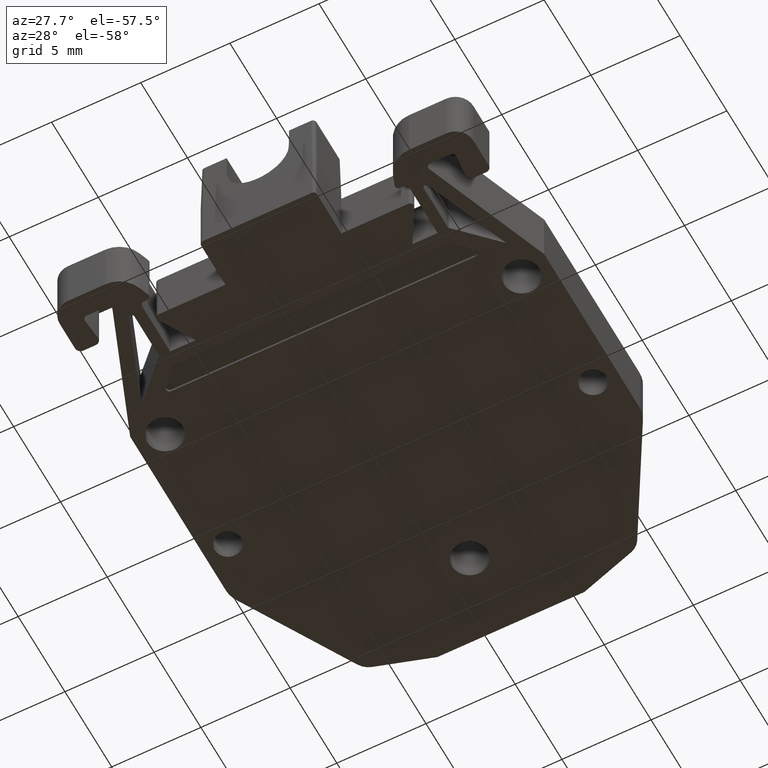
[diagram: clean part render]
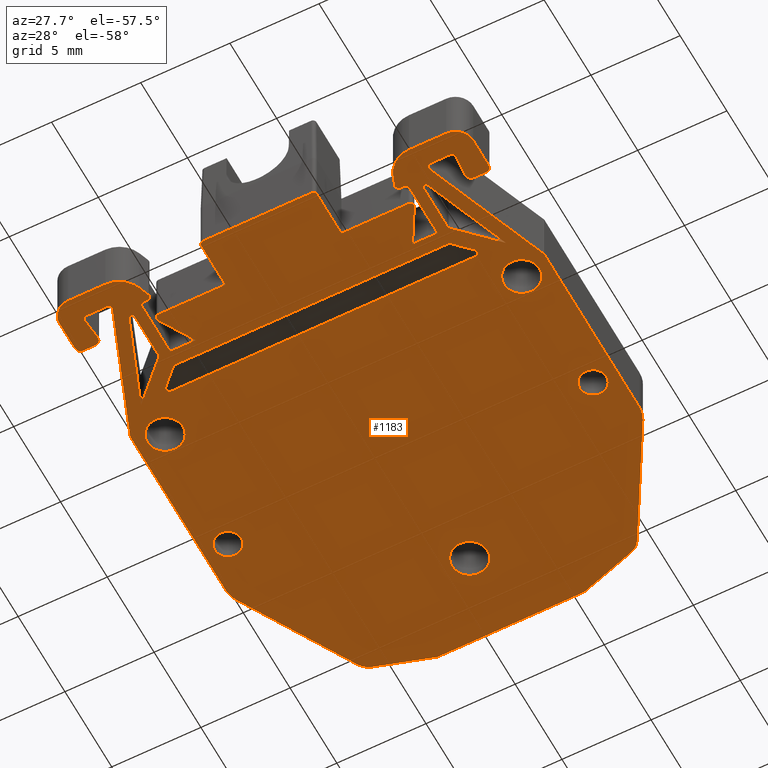
[diagram: same view with one face highlighted and labeled with its STEP entity id]
A machine part, auxiliary view. The second image highlights one B-rep face of the part: STEP entity #1183.
In plain terms, the highlighted planar face has unit normal (0, 0, -1).
Its self-contained STEP definition (entity closure, byte-faithful):
#2 = CARTESIAN_POINT ( 'NONE',  ( 241.5252887473434700, 476.3741209569420200, 8.439999999999999500 ) ) ;
#3 = DIRECTION ( 'NONE',  ( 1.000000000000000000, 0.0000000000000000000, 0.0000000000000000000 ) ) ;
#5 = CARTESIAN_POINT ( 'NONE',  ( 239.8239954452629900, 466.8967608090050000, 8.439999999999999500 ) ) ;
#10 = DIRECTION ( 'NONE',  ( 0.0000000000000000000, 0.0000000000000000000, 1.000000000000000000 ) ) ;
#15 = CARTESIAN_POINT ( 'NONE',  ( 231.1956566263090200, 467.0967608090049900, 8.439999999999999500 ) ) ;
#19 = LINE ( 'NONE', #63, #1302 ) ;
#20 = LINE ( 'NONE', #15, #1305 ) ;
#21 = DIRECTION ( 'NONE',  ( 1.000000000000000000, 0.0000000000000000000, 0.0000000000000000000 ) ) ;
#22 = DIRECTION ( 'NONE',  ( -1.000000000000000000, 0.0000000000000000000, -0.0000000000000000000 ) ) ;
#23 = DIRECTION ( 'NONE',  ( 0.0000000000000000000, 0.0000000000000000000, 1.000000000000000000 ) ) ;
#40 = DIRECTION ( 'NONE',  ( 1.000000000000000000, 0.0000000000000000000, 0.0000000000000000000 ) ) ;
#44 = DIRECTION ( 'NONE',  ( 0.08715330452511417500, -0.9961949114055707000, 0.0000000000000000000 ) ) ;
#54 = CARTESIAN_POINT ( 'NONE',  ( 224.1779864925315500, 461.5958657951910000, 8.439999999999999500 ) ) ;
#55 = DIRECTION ( 'NONE',  ( 0.0000000000000000000, 0.0000000000000000000, 1.000000000000000000 ) ) ;
#59 = CARTESIAN_POINT ( 'NONE',  ( 221.0465869395580400, 476.3741209569490100, 8.439999999999999500 ) ) ;
#62 = DIRECTION ( 'NONE',  ( 0.0000000000000000000, 0.0000000000000000000, 1.000000000000000000 ) ) ;
#63 = CARTESIAN_POINT ( 'NONE',  ( 241.1119934485674900, 467.9507056532350500, 8.440000000000006600 ) ) ;
#64 = DIRECTION ( 'NONE',  ( 1.000000000000000000, 0.0000000000000000000, 0.0000000000000000000 ) ) ;
#158 = FACE_BOUND ( 'NONE', #1740, .T. ) ;
#159 = FACE_BOUND ( 'NONE', #1765, .T. ) ;
#160 = FACE_BOUND ( 'NONE', #1773, .T. ) ;
#169 = FACE_BOUND ( 'NONE', #1762, .T. ) ;
#171 = PLANE ( 'NONE',  #1363 ) ;
#195 = FACE_BOUND ( 'NONE', #1750, .T. ) ;
#199 = FACE_OUTER_BOUND ( 'NONE', #1738, .T. ) ;
#200 = FACE_BOUND ( 'NONE', #1783, .T. ) ;
#201 = FACE_BOUND ( 'NONE', #1779, .T. ) ;
#202 = FACE_BOUND ( 'NONE', #1752, .T. ) ;
#220 = DIRECTION ( 'NONE',  ( 0.0000000000000000000, 0.0000000000000000000, -1.000000000000000000 ) ) ;
#235 = CARTESIAN_POINT ( 'NONE',  ( 231.1956566263090200, 448.7791873159291100, 8.439999999999999500 ) ) ;
#254 = DIRECTION ( 'NONE',  ( -1.000000000000000000, 0.0000000000000000000, -0.0000000000000000000 ) ) ;
#524 = CARTESIAN_POINT ( 'NONE',  ( 239.7961727636530000, 460.0003766282160300, 8.439999999999999500 ) ) ;
#526 = CARTESIAN_POINT ( 'NONE',  ( 234.5359378434510200, 462.7966268555720700, 8.439999999999999500 ) ) ;
#527 = CARTESIAN_POINT ( 'NONE',  ( 239.9654168015006200, 466.7553394527670300, 8.439999999999999500 ) ) ;
#533 = CARTESIAN_POINT ( 'NONE',  ( 232.2859378434509900, 482.6954399154270200, 8.439999999999999500 ) ) ;
#534 = CARTESIAN_POINT ( 'NONE',  ( 222.4076561082410100, 461.4003766282160100, 8.439999999999999500 ) ) ;
#535 = CARTESIAN_POINT ( 'NONE',  ( 242.2859378434516500, 469.2072313446190000, 8.439999999999999500 ) ) ;
#536 = CARTESIAN_POINT ( 'NONE',  ( 230.2859378434509900, 482.6954399154270200, 8.439999999999999500 ) ) ;
#537 = CARTESIAN_POINT ( 'NONE',  ( 240.2859378434652900, 469.2072313446190000, 8.439999999999999500 ) ) ;
#538 = CARTESIAN_POINT ( 'NONE',  ( 220.2859378434757800, 469.2072313446229800, 8.439999999999999500 ) ) ;
#539 = CARTESIAN_POINT ( 'NONE',  ( 224.1693391924883700, 460.9873465228504300, 8.439999999999999500 ) ) ;
#541 = CARTESIAN_POINT ( 'NONE',  ( 221.7965869395580400, 476.3741209569490100, 8.439999999999999500 ) ) ;
#542 = CARTESIAN_POINT ( 'NONE',  ( 222.3943586721448500, 461.4720854326384900, 8.439999999999999500 ) ) ;
#543 = CARTESIAN_POINT ( 'NONE',  ( 238.4938891943699800, 462.9958657951910400, 8.439999999999999500 ) ) ;
#545 = CARTESIAN_POINT ( 'NONE',  ( 222.2859378434503100, 469.2072313446229800, 8.439999999999999500 ) ) ;
#547 = CARTESIAN_POINT ( 'NONE',  ( 220.9779864925310200, 462.6242306368582100, 8.439999999999999500 ) ) ;
#548 = CARTESIAN_POINT ( 'NONE',  ( 234.5359378434510500, 460.2003766282140300, 8.439999999999999500 ) ) ;
#550 = CARTESIAN_POINT ( 'NONE',  ( 240.0239954452629800, 466.8967608090050000, 8.439999999999999500 ) ) ;
#551 = CARTESIAN_POINT ( 'NONE',  ( 241.6835318835068200, 461.4178072891210100, 8.440000000000004800 ) ) ;
#552 = CARTESIAN_POINT ( 'NONE',  ( 224.3779864925315600, 461.5958657951910000, 8.439999999999999500 ) ) ;
#553 = CARTESIAN_POINT ( 'NONE',  ( 228.2359378434510100, 460.0003766282139300, 8.439999999999999500 ) ) ;
#556 = CARTESIAN_POINT ( 'NONE',  ( 239.8239954452629900, 467.0967608090049900, 8.439999999999999500 ) ) ;
#558 = CARTESIAN_POINT ( 'NONE',  ( 240.1616143129180000, 461.4720854326385500, 8.439999999999999500 ) ) ;
#559 = CARTESIAN_POINT ( 'NONE',  ( 220.2965869395580400, 476.3741209569490100, 8.439999999999999500 ) ) ;
#561 = CARTESIAN_POINT ( 'NONE',  ( 228.0359378434510500, 460.2003766282140300, 8.439999999999999500 ) ) ;
#562 = CARTESIAN_POINT ( 'NONE',  ( 242.2752887473438900, 476.3741209569420200, 8.439999999999999500 ) ) ;
#565 = CARTESIAN_POINT ( 'NONE',  ( 240.3483168768220000, 461.2003766282160800, 8.439999999999999500 ) ) ;
#566 = CARTESIAN_POINT ( 'NONE',  ( 224.3659250220089200, 461.5274617811421100, 8.439999999999999500 ) ) ;
#567 = CARTESIAN_POINT ( 'NONE',  ( 241.4842929012260100, 461.2003766282161300, 8.439999999999999500 ) ) ;
#568 = CARTESIAN_POINT ( 'NONE',  ( 222.2076561082410000, 461.2003766282159100, 8.439999999999999500 ) ) ;
#570 = CARTESIAN_POINT ( 'NONE',  ( 222.6064588854009700, 466.7553394527672000, 8.439999999999999500 ) ) ;
#571 = CARTESIAN_POINT ( 'NONE',  ( 242.8859378434505100, 468.5444896448190700, 8.439999999999999500 ) ) ;
#573 = CARTESIAN_POINT ( 'NONE',  ( 239.3897296836967100, 462.3478380933049700, 8.440000000003667700 ) ) ;
#574 = CARTESIAN_POINT ( 'NONE',  ( 239.0104539769470800, 465.8003766282138800, 8.439999999999999500 ) ) ;
#576 = CARTESIAN_POINT ( 'NONE',  ( 238.4670942751266400, 463.0958657951908300, 8.439999999999999500 ) ) ;
#577 = CARTESIAN_POINT ( 'NONE',  ( 220.6779864925310100, 460.0003766282165400, 8.439999999999999500 ) ) ;
#579 = CARTESIAN_POINT ( 'NONE',  ( 224.0081404499325400, 486.1046860200189000, 8.439999999999999500 ) ) ;
#580 = CARTESIAN_POINT ( 'NONE',  ( 224.1047814117757800, 463.0958657951906000, 8.439999999999999500 ) ) ;
#586 = CARTESIAN_POINT ( 'NONE',  ( 238.2764580458240600, 462.7966268555720700, 8.439999999999999500 ) ) ;
#589 = CARTESIAN_POINT ( 'NONE',  ( 239.6684335538268400, 462.2961561982760400, 8.440000000003667700 ) ) ;
#594 = CARTESIAN_POINT ( 'NONE',  ( 224.2954176410779000, 462.7966268555720700, 8.439999999999999500 ) ) ;
#595 = CARTESIAN_POINT ( 'NONE',  ( 223.9779864925314400, 461.7958657951910500, 8.439999999999999500 ) ) ;
#597 = CARTESIAN_POINT ( 'NONE',  ( 224.1779864925316000, 461.7958657951910500, 8.439999999999999500 ) ) ;
#598 = CARTESIAN_POINT ( 'NONE',  ( 241.8779864925320200, 460.0003766282161500, 8.439999999999999500 ) ) ;
#599 = CARTESIAN_POINT ( 'NONE',  ( 219.6779864925310100, 461.0003766282159700, 8.439999999999999500 ) ) ;
#600 = CARTESIAN_POINT ( 'NONE',  ( 241.8768449659540100, 462.9503766282159600, 8.439999999999999500 ) ) ;
#601 = CARTESIAN_POINT ( 'NONE',  ( 223.1662433013660500, 464.9851915803329800, 8.439999999999990600 ) ) ;
#602 = CARTESIAN_POINT ( 'NONE',  ( 219.8868997377738000, 479.4919330427191000, 8.439999999999999500 ) ) ;
#603 = CARTESIAN_POINT ( 'NONE',  ( 241.5779864925320300, 462.6242306368582100, 8.439999999999999500 ) ) ;
#604 = CARTESIAN_POINT ( 'NONE',  ( 221.0716800838370100, 461.2003766282159100, 8.439999999999999500 ) ) ;
#607 = CARTESIAN_POINT ( 'NONE',  ( 241.6842929012259700, 461.4003766282160100, 8.439999999999999500 ) ) ;
#608 = CARTESIAN_POINT ( 'NONE',  ( 220.9791280191095100, 462.6503766282149300, 8.439999999999999500 ) ) ;
#610 = CARTESIAN_POINT ( 'NONE',  ( 234.3359378434510100, 460.0003766282140400, 8.439999999999999500 ) ) ;
#611 = CARTESIAN_POINT ( 'NONE',  ( 223.7779864925321400, 465.0003766282139800, 8.439999999999999500 ) ) ;
#613 = CARTESIAN_POINT ( 'NONE',  ( 238.3779864925313900, 461.7958657951907600, 8.439999999999999500 ) ) ;
#614 = CARTESIAN_POINT ( 'NONE',  ( 222.8875394312365200, 462.2961561982757000, 8.440000000003667700 ) ) ;
#615 = CARTESIAN_POINT ( 'NONE',  ( 223.5614217099545200, 465.8003766282140000, 8.439999999999999500 ) ) ;
#618 = CARTESIAN_POINT ( 'NONE',  ( 219.6859378434504900, 478.7419330427189800, 8.439999999999999500 ) ) ;
#620 = CARTESIAN_POINT ( 'NONE',  ( 242.8779864925320200, 462.6503766282149300, 8.439999999999999500 ) ) ;
#621 = CARTESIAN_POINT ( 'NONE',  ( 219.6859378434504900, 468.5237873389456800, 8.439999999999999500 ) ) ;
#622 = CARTESIAN_POINT ( 'NONE',  ( 240.7752887473430400, 476.3741209569420200, 8.439999999999999500 ) ) ;
#623 = CARTESIAN_POINT ( 'NONE',  ( 228.0359378434510200, 462.7966268555720700, 8.439999999999999500 ) ) ;
#625 = CARTESIAN_POINT ( 'NONE',  ( 219.6779864925310100, 462.6503766282149300, 8.439999999999999500 ) ) ;
#626 = CARTESIAN_POINT ( 'NONE',  ( 241.5091653538177900, 467.0887245486141500, 8.440000000000001300 ) ) ;
#627 = CARTESIAN_POINT ( 'NONE',  ( 238.5779864925315500, 461.7958657951909900, 8.439999999999999500 ) ) ;
#628 = CARTESIAN_POINT ( 'NONE',  ( 222.7478802416384800, 467.0967608090049900, 8.439999999999999500 ) ) ;
#630 = CARTESIAN_POINT ( 'NONE',  ( 235.4058080792569300, 487.1003766282140600, 8.439999999999999500 ) ) ;
#631 = CARTESIAN_POINT ( 'NONE',  ( 227.1660676076455400, 487.1003766282136700, 8.439999999999999500 ) ) ;
#636 = CARTESIAN_POINT ( 'NONE',  ( 223.7779864925316000, 461.9958657951910400, 8.439999999999999500 ) ) ;
#643 = CARTESIAN_POINT ( 'NONE',  ( 238.5637352369684500, 486.1046860200190200, 8.439999999999999500 ) ) ;
#645 = CARTESIAN_POINT ( 'NONE',  ( 220.6791280191095300, 462.9503766282159600, 8.439999999999999500 ) ) ;
#646 = CARTESIAN_POINT ( 'NONE',  ( 222.7598002214102700, 460.0003766282166000, 8.439999999999999500 ) ) ;
#647 = CARTESIAN_POINT ( 'NONE',  ( 242.8859378434505100, 478.7419330427189800, 8.439999999999999500 ) ) ;
#650 = CARTESIAN_POINT ( 'NONE',  ( 237.3675244330054300, 465.0003766282149500, 8.439999999999999500 ) ) ;
#652 = CARTESIAN_POINT ( 'NONE',  ( 242.8730281202625700, 468.5315799216309100, 8.439999999999999500 ) ) ;
#655 = CARTESIAN_POINT ( 'NONE',  ( 221.0368908867095600, 467.1145439949894500, 8.439999999999994200 ) ) ;
#656 = CARTESIAN_POINT ( 'NONE',  ( 242.6849759491270500, 479.4919330427189800, 8.439999999999999500 ) ) ;
#657 = CARTESIAN_POINT ( 'NONE',  ( 242.5779864925319800, 462.9503766282159600, 8.439999999999999500 ) ) ;
#664 = CARTESIAN_POINT ( 'NONE',  ( 239.1290548412484600, 485.6509690692709600, 8.439999999999999500 ) ) ;
#669 = CARTESIAN_POINT ( 'NONE',  ( 238.7779864925310800, 465.0003766282159700, 8.439999999999999500 ) ) ;
#674 = CARTESIAN_POINT ( 'NONE',  ( 220.8724411015558100, 461.4178072891210700, 8.440000000000003100 ) ) ;
#675 = CARTESIAN_POINT ( 'NONE',  ( 238.1900479630540400, 461.5274617811420500, 8.439999999999999500 ) ) ;
#677 = CARTESIAN_POINT ( 'NONE',  ( 238.3866337925746800, 460.9873465228504300, 8.439999999999999500 ) ) ;
#680 = CARTESIAN_POINT ( 'NONE',  ( 223.4428208456523100, 485.6509690692709600, 8.439999999999999500 ) ) ;
#686 = CARTESIAN_POINT ( 'NONE',  ( 239.4208174334174800, 465.0003766282139800, 8.439999999999999500 ) ) ;
#687 = CARTESIAN_POINT ( 'NONE',  ( 239.3897296836968000, 465.0003766282139800, 8.440000000000003100 ) ) ;
#688 = CARTESIAN_POINT ( 'NONE',  ( 225.2043512538971900, 465.0003766282142100, 8.439999999999999500 ) ) ;
#692 = CARTESIAN_POINT ( 'NONE',  ( 242.8779864925319900, 461.0003766282159700, 8.439999999999999500 ) ) ;
#693 = CARTESIAN_POINT ( 'NONE',  ( 219.9779864925310200, 462.9503766282159600, 8.439999999999999500 ) ) ;
#694 = CARTESIAN_POINT ( 'NONE',  ( 223.1662433013663100, 462.3478380933049700, 8.440000000003664100 ) ) ;
#695 = CARTESIAN_POINT ( 'NONE',  ( 238.7779864925313700, 461.9958657951910400, 8.439999999999999500 ) ) ;
#856 = EDGE_CURVE ( 'NONE', #1492, #1577, #3359, .T. ) ;
#857 = EDGE_CURVE ( 'NONE', #1528, #1474, #3353, .T. ) ;
#858 = EDGE_CURVE ( 'NONE', #1556, #1548, #3384, .T. ) ;
#859 = EDGE_CURVE ( 'NONE', #1538, #1570, #3379, .T. ) ;
#860 = EDGE_CURVE ( 'NONE', #1471, #1486, #3374, .T. ) ;
#861 = EDGE_CURVE ( 'NONE', #1527, #1564, #2353, .T. ) ;
#862 = EDGE_CURVE ( 'NONE', #1564, #1594, #3385, .T. ) ;
#863 = EDGE_CURVE ( 'NONE', #1478, #1559, #3396, .T. ) ;
#864 = EDGE_CURVE ( 'NONE', #1450, #1479, #2372, .T. ) ;
#865 = EDGE_CURVE ( 'NONE', #1568, #1547, #3357, .T. ) ;
#866 = EDGE_CURVE ( 'NONE', #1569, #1582, #3355, .T. ) ;
#867 = EDGE_CURVE ( 'NONE', #1554, #1578, #3367, .T. ) ;
#868 = EDGE_CURVE ( 'NONE', #1572, #1592, #3409, .T. ) ;
#869 = EDGE_CURVE ( 'NONE', #1445, #1468, #2370, .T. ) ;
#870 = EDGE_CURVE ( 'NONE', #1562, #1590, #2374, .T. ) ;
#871 = EDGE_CURVE ( 'NONE', #1511, #1579, #3432, .T. ) ;
#872 = EDGE_CURVE ( 'NONE', #1577, #1566, #2382, .T. ) ;
#874 = EDGE_CURVE ( 'NONE', #1539, #1557, #3418, .T. ) ;
#875 = EDGE_CURVE ( 'NONE', #1528, #1487, #2386, .T. ) ;
#876 = EDGE_CURVE ( 'NONE', #1500, #1522, #3431, .T. ) ;
#877 = EDGE_CURVE ( 'NONE', #1570, #1582, #2377, .T. ) ;
#878 = EDGE_CURVE ( 'NONE', #1527, #1531, #3436, .T. ) ;
#879 = EDGE_CURVE ( 'NONE', #1553, #1578, #2394, .T. ) ;
#880 = EDGE_CURVE ( 'NONE', #1455, #1557, #2398, .T. ) ;
#881 = EDGE_CURVE ( 'NONE', #1574, #1586, #3453, .T. ) ;
#882 = EDGE_CURVE ( 'NONE', #1573, #1486, #2397, .T. ) ;
#883 = EDGE_CURVE ( 'NONE', #1473, #1566, #3462, .T. ) ;
#884 = EDGE_CURVE ( 'NONE', #1576, #1561, #2392, .T. ) ;
#885 = EDGE_CURVE ( 'NONE', #1584, #1552, #3477, .T. ) ;
#886 = EDGE_CURVE ( 'NONE', #1546, #1538, #3473, .T. ) ;
#887 = EDGE_CURVE ( 'NONE', #1551, #1592, #2407, .T. ) ;
#888 = EDGE_CURVE ( 'NONE', #1545, #1583, #3481, .T. ) ;
#889 = EDGE_CURVE ( 'NONE', #1500, #1487, #3461, .T. ) ;
#890 = EDGE_CURVE ( 'NONE', #1545, #1571, #3475, .T. ) ;
#891 = EDGE_CURVE ( 'NONE', #1584, #1559, #2423, .T. ) ;
#892 = EDGE_CURVE ( 'NONE', #1548, #1565, #2421, .T. ) ;
#893 = EDGE_CURVE ( 'NONE', #1553, #1585, #3483, .T. ) ;
#894 = EDGE_CURVE ( 'NONE', #1573, #1563, #3445, .T. ) ;
#895 = EDGE_CURVE ( 'NONE', #1569, #1571, #2410, .T. ) ;
#896 = EDGE_CURVE ( 'NONE', #1480, #1515, #2420, .T. ) ;
#897 = EDGE_CURVE ( 'NONE', #1580, #1508, #2417, .T. ) ;
#898 = EDGE_CURVE ( 'NONE', #1594, #1547, #3455, .T. ) ;
#899 = EDGE_CURVE ( 'NONE', #1565, #1576, #3518, .T. ) ;
#900 = EDGE_CURVE ( 'NONE', #1506, #1521, #2405, .T. ) ;
#901 = EDGE_CURVE ( 'NONE', #1580, #1575, #3509, .T. ) ;
#902 = EDGE_CURVE ( 'NONE', #1466, #1556, #3517, .T. ) ;
#903 = EDGE_CURVE ( 'NONE', #1572, #1478, #2450, .T. ) ;
#904 = EDGE_CURVE ( 'NONE', #1555, #1484, #2443, .T. ) ;
#905 = EDGE_CURVE ( 'NONE', #1473, #1447, #2441, .T. ) ;
#906 = EDGE_CURVE ( 'NONE', #1585, #1554, #3513, .T. ) ;
#907 = EDGE_CURVE ( 'NONE', #1558, #1533, #3499, .T. ) ;
#909 = EDGE_CURVE ( 'NONE', #1579, #1552, #2440, .T. ) ;
#910 = EDGE_CURVE ( 'NONE', #1560, #1544, #3535, .T. ) ;
#911 = EDGE_CURVE ( 'NONE', #1475, #1474, #2439, .T. ) ;
#912 = EDGE_CURVE ( 'NONE', #1476, #1583, #3536, .T. ) ;
#913 = EDGE_CURVE ( 'NONE', #1568, #1539, #2442, .T. ) ;
#914 = EDGE_CURVE ( 'NONE', #1549, #1581, #3556, .T. ) ;
#915 = EDGE_CURVE ( 'NONE', #1544, #1575, #2431, .T. ) ;
#916 = EDGE_CURVE ( 'NONE', #1475, #1531, #3539, .T. ) ;
#917 = EDGE_CURVE ( 'NONE', #1546, #1561, #3559, .T. ) ;
#918 = EDGE_CURVE ( 'NONE', #1563, #1560, #2446, .T. ) ;
#930 = EDGE_CURVE ( 'NONE', #1464, #1489, #2435, .T. ) ;
#933 = EDGE_CURVE ( 'NONE', #1567, #1558, #2612, .T. ) ;
#934 = EDGE_CURVE ( 'NONE', #1562, #1551, #2592, .T. ) ;
#940 = EDGE_CURVE ( 'NONE', #1549, #1533, #2474, .T. ) ;
#941 = EDGE_CURVE ( 'NONE', #1590, #1574, #2632, .T. ) ;
#951 = EDGE_CURVE ( 'NONE', #1470, #1482, #2500, .T. ) ;
#960 = EDGE_CURVE ( 'NONE', #1555, #1586, #2699, .T. ) ;
#970 = EDGE_CURVE ( 'NONE', #1567, #1581, #2738, .T. ) ;
#1038 = EDGE_CURVE ( 'NONE', #1508, #1492, #2306, .T. ) ;
#1059 = EDGE_CURVE ( 'NONE', #1482, #1470, #2338, .T. ) ;
#1065 = EDGE_CURVE ( 'NONE', #1447, #1466, #2336, .T. ) ;
#1097 = EDGE_CURVE ( 'NONE', #1524, #1496, #2238, .T. ) ;
#1098 = EDGE_CURVE ( 'NONE', #1476, #1488, #2237, .T. ) ;
#1100 = EDGE_CURVE ( 'NONE', #1512, #1501, #3138, .T. ) ;
#1101 = EDGE_CURVE ( 'NONE', #1488, #1472, #3121, .T. ) ;
#1102 = EDGE_CURVE ( 'NONE', #1501, #1481, #2230, .T. ) ;
#1103 = EDGE_CURVE ( 'NONE', #1505, #1512, #3119, .T. ) ;
#1109 = EDGE_CURVE ( 'NONE', #1468, #1445, #1273, .T. ) ;
#1118 = EDGE_CURVE ( 'NONE', #1484, #1522, #1274, .T. ) ;
#1126 = EDGE_CURVE ( 'NONE', #1472, #1524, #1279, .T. ) ;
#1131 = EDGE_CURVE ( 'NONE', #1479, #1450, #1297, .T. ) ;
#1133 = EDGE_CURVE ( 'NONE', #1521, #1505, #3226, .T. ) ;
#1135 = EDGE_CURVE ( 'NONE', #1530, #1511, #1316, .T. ) ;
#1136 = EDGE_CURVE ( 'NONE', #1481, #1469, #1281, .T. ) ;
#1137 = EDGE_CURVE ( 'NONE', #1515, #1480, #1318, .T. ) ;
#1140 = EDGE_CURVE ( 'NONE', #1469, #1506, #20, .T. ) ;
#1144 = EDGE_CURVE ( 'NONE', #1530, #1496, #19, .T. ) ;
#1151 = EDGE_CURVE ( 'NONE', #1471, #1455, #1287, .T. ) ;
#1153 = EDGE_CURVE ( 'NONE', #1489, #1464, #1327, .T. ) ;
#1183 = ADVANCED_FACE ( 'NONE', ( #169, #199, #200, #202, #160, #158, #195, #201, #159 ), #171, .T. ) ;
#1268 = AXIS2_PLACEMENT_3D ( 'NONE', #3170, #3194, #3171 ) ;
#1271 = AXIS2_PLACEMENT_3D ( 'NONE', #3162, #3153, #3156 ) ;
#1273 = CIRCLE ( 'NONE', #1268, 0.9999999999872610800 ) ;
#1274 = CIRCLE ( 'NONE', #1271, 0.2000000000000057300 ) ;
#1279 = CIRCLE ( 'NONE', #1311, 0.1999999999999779700 ) ;
#1281 = CIRCLE ( 'NONE', #1315, 0.1999999999999779700 ) ;
#1287 = CIRCLE ( 'NONE', #1290, 0.2000000000000334800 ) ;
#1290 = AXIS2_PLACEMENT_3D ( 'NONE', #54, #55, #40 ) ;
#1296 = AXIS2_PLACEMENT_3D ( 'NONE', #2, #23, #3 ) ;
#1297 = CIRCLE ( 'NONE', #1313, 1.000000000000000900 ) ;
#1302 = VECTOR ( 'NONE', #44, 1000.000000000000000 ) ;
#1305 = VECTOR ( 'NONE', #22, 1000.000000000000000 ) ;
#1306 = VECTOR ( 'NONE', #3236, 999.9999999999998900 ) ;
#1309 = AXIS2_PLACEMENT_3D ( 'NONE', #3034, #3104, #3123 ) ;
#1311 = AXIS2_PLACEMENT_3D ( 'NONE', #3229, #3217, #3233 ) ;
#1313 = AXIS2_PLACEMENT_3D ( 'NONE', #3202, #3211, #3218 ) ;
#1315 = AXIS2_PLACEMENT_3D ( 'NONE', #5, #10, #21 ) ;
#1316 = CIRCLE ( 'NONE', #1309, 0.3000000000000224700 ) ;
#1318 = CIRCLE ( 'NONE', #1296, 0.7500000000004170000 ) ;
#1327 = CIRCLE ( 'NONE', #1347, 0.7500000000000006700 ) ;
#1347 = AXIS2_PLACEMENT_3D ( 'NONE', #59, #62, #64 ) ;
#1361 = ORIENTED_EDGE ( 'NONE', *, *, #876, .F. ) ;
#1363 = AXIS2_PLACEMENT_3D ( 'NONE', #235, #220, #254 ) ;
#1392 = ORIENTED_EDGE ( 'NONE', *, *, #898, .T. ) ;
#1426 = ORIENTED_EDGE ( 'NONE', *, *, #892, .T. ) ;
#1428 = ORIENTED_EDGE ( 'NONE', *, *, #884, .T. ) ;
#1432 = ORIENTED_EDGE ( 'NONE', *, *, #902, .T. ) ;
#1445 = VERTEX_POINT ( 'NONE', #545 ) ;
#1447 = VERTEX_POINT ( 'NONE', #534 ) ;
#1450 = VERTEX_POINT ( 'NONE', #533 ) ;
#1455 = VERTEX_POINT ( 'NONE', #552 ) ;
#1464 = VERTEX_POINT ( 'NONE', #541 ) ;
#1466 = VERTEX_POINT ( 'NONE', #542 ) ;
#1468 = VERTEX_POINT ( 'NONE', #538 ) ;
#1469 = VERTEX_POINT ( 'NONE', #556 ) ;
#1470 = VERTEX_POINT ( 'NONE', #535 ) ;
#1471 = VERTEX_POINT ( 'NONE', #566 ) ;
#1472 = VERTEX_POINT ( 'NONE', #567 ) ;
#1473 = VERTEX_POINT ( 'NONE', #568 ) ;
#1474 = VERTEX_POINT ( 'NONE', #553 ) ;
#1475 = VERTEX_POINT ( 'NONE', #561 ) ;
#1476 = VERTEX_POINT ( 'NONE', #558 ) ;
#1478 = VERTEX_POINT ( 'NONE', #524 ) ;
#1479 = VERTEX_POINT ( 'NONE', #536 ) ;
#1480 = VERTEX_POINT ( 'NONE', #562 ) ;
#1481 = VERTEX_POINT ( 'NONE', #550 ) ;
#1482 = VERTEX_POINT ( 'NONE', #537 ) ;
#1484 = VERTEX_POINT ( 'NONE', #543 ) ;
#1486 = VERTEX_POINT ( 'NONE', #539 ) ;
#1487 = VERTEX_POINT ( 'NONE', #548 ) ;
#1488 = VERTEX_POINT ( 'NONE', #565 ) ;
#1489 = VERTEX_POINT ( 'NONE', #559 ) ;
#1492 = VERTEX_POINT ( 'NONE', #547 ) ;
#1496 = VERTEX_POINT ( 'NONE', #551 ) ;
#1500 = VERTEX_POINT ( 'NONE', #526 ) ;
#1501 = VERTEX_POINT ( 'NONE', #527 ) ;
#1505 = VERTEX_POINT ( 'NONE', #615 ) ;
#1506 = VERTEX_POINT ( 'NONE', #628 ) ;
#1508 = VERTEX_POINT ( 'NONE', #608 ) ;
#1511 = VERTEX_POINT ( 'NONE', #600 ) ;
#1512 = VERTEX_POINT ( 'NONE', #574 ) ;
#1515 = VERTEX_POINT ( 'NONE', #622 ) ;
#1521 = VERTEX_POINT ( 'NONE', #570 ) ;
#1522 = VERTEX_POINT ( 'NONE', #586 ) ;
#1524 = VERTEX_POINT ( 'NONE', #607 ) ;
#1527 = VERTEX_POINT ( 'NONE', #594 ) ;
#1528 = VERTEX_POINT ( 'NONE', #610 ) ;
#1530 = VERTEX_POINT ( 'NONE', #603 ) ;
#1531 = VERTEX_POINT ( 'NONE', #623 ) ;
#1533 = VERTEX_POINT ( 'NONE', #589 ) ;
#1538 = VERTEX_POINT ( 'NONE', #630 ) ;
#1539 = VERTEX_POINT ( 'NONE', #595 ) ;
#1544 = VERTEX_POINT ( 'NONE', #625 ) ;
#1545 = VERTEX_POINT ( 'NONE', #571 ) ;
#1546 = VERTEX_POINT ( 'NONE', #631 ) ;
#1547 = VERTEX_POINT ( 'NONE', #611 ) ;
#1548 = VERTEX_POINT ( 'NONE', #618 ) ;
#1549 = VERTEX_POINT ( 'NONE', #573 ) ;
#1551 = VERTEX_POINT ( 'NONE', #613 ) ;
#1552 = VERTEX_POINT ( 'NONE', #620 ) ;
#1553 = VERTEX_POINT ( 'NONE', #614 ) ;
#1554 = VERTEX_POINT ( 'NONE', #601 ) ;
#1555 = VERTEX_POINT ( 'NONE', #576 ) ;
#1556 = VERTEX_POINT ( 'NONE', #621 ) ;
#1557 = VERTEX_POINT ( 'NONE', #597 ) ;
#1558 = VERTEX_POINT ( 'NONE', #626 ) ;
#1559 = VERTEX_POINT ( 'NONE', #598 ) ;
#1560 = VERTEX_POINT ( 'NONE', #599 ) ;
#1561 = VERTEX_POINT ( 'NONE', #579 ) ;
#1562 = VERTEX_POINT ( 'NONE', #627 ) ;
#1563 = VERTEX_POINT ( 'NONE', #577 ) ;
#1564 = VERTEX_POINT ( 'NONE', #580 ) ;
#1565 = VERTEX_POINT ( 'NONE', #602 ) ;
#1566 = VERTEX_POINT ( 'NONE', #604 ) ;
#1567 = VERTEX_POINT ( 'NONE', #686 ) ;
#1568 = VERTEX_POINT ( 'NONE', #636 ) ;
#1569 = VERTEX_POINT ( 'NONE', #656 ) ;
#1570 = VERTEX_POINT ( 'NONE', #643 ) ;
#1571 = VERTEX_POINT ( 'NONE', #647 ) ;
#1572 = VERTEX_POINT ( 'NONE', #677 ) ;
#1573 = VERTEX_POINT ( 'NONE', #646 ) ;
#1574 = VERTEX_POINT ( 'NONE', #669 ) ;
#1575 = VERTEX_POINT ( 'NONE', #693 ) ;
#1576 = VERTEX_POINT ( 'NONE', #680 ) ;
#1577 = VERTEX_POINT ( 'NONE', #674 ) ;
#1578 = VERTEX_POINT ( 'NONE', #694 ) ;
#1579 = VERTEX_POINT ( 'NONE', #657 ) ;
#1580 = VERTEX_POINT ( 'NONE', #645 ) ;
#1581 = VERTEX_POINT ( 'NONE', #687 ) ;
#1582 = VERTEX_POINT ( 'NONE', #664 ) ;
#1583 = VERTEX_POINT ( 'NONE', #652 ) ;
#1584 = VERTEX_POINT ( 'NONE', #692 ) ;
#1585 = VERTEX_POINT ( 'NONE', #655 ) ;
#1586 = VERTEX_POINT ( 'NONE', #650 ) ;
#1590 = VERTEX_POINT ( 'NONE', #695 ) ;
#1592 = VERTEX_POINT ( 'NONE', #675 ) ;
#1594 = VERTEX_POINT ( 'NONE', #688 ) ;
#1738 = EDGE_LOOP ( 'NONE', ( #1361, #2192, #2183, #2178, #2184, #2194, #2254, #2179, #2165, #1392, #2166, #2204, #2169, #2174, #2215, #2207, #3239, #3267, #3341, #3266, #3246, #3280, #3277, #3274, #3243, #3253, #3258, #3255, #3251, #1432, #3282, #1426, #3263, #1428, #3238, #3279, #3281, #3261, #3262, #3285, #3272, #3275, #3270, #3265, #3254, #3278, #3245, #3247, #3283, #3237, #3264, #3284, #3248, #3259, #3260, #3286, #3256, #3240, #3241, #3242, #3271, #3268, #3269, #3249 ) ) ;
#1740 = EDGE_LOOP ( 'NONE', ( #3340, #3302 ) ) ;
#1750 = EDGE_LOOP ( 'NONE', ( #3332, #3304 ) ) ;
#1752 = EDGE_LOOP ( 'NONE', ( #3276, #3300 ) ) ;
#1762 = EDGE_LOOP ( 'NONE', ( #2168, #2173, #2228, #2241, #2193, #2251, #2253 ) ) ;
#1765 = EDGE_LOOP ( 'NONE', ( #3306, #3322 ) ) ;
#1773 = EDGE_LOOP ( 'NONE', ( #3307, #3317 ) ) ;
#1779 = EDGE_LOOP ( 'NONE', ( #3329, #3310, #3344, #3299 ) ) ;
#1783 = EDGE_LOOP ( 'NONE', ( #3273, #3250, #3244, #3257, #3252 ) ) ;
#2165 = ORIENTED_EDGE ( 'NONE', *, *, #862, .T. ) ;
#2166 = ORIENTED_EDGE ( 'NONE', *, *, #865, .F. ) ;
#2168 = ORIENTED_EDGE ( 'NONE', *, *, #1133, .T. ) ;
#2169 = ORIENTED_EDGE ( 'NONE', *, *, #874, .T. ) ;
#2173 = ORIENTED_EDGE ( 'NONE', *, *, #1103, .T. ) ;
#2174 = ORIENTED_EDGE ( 'NONE', *, *, #880, .F. ) ;
#2178 = ORIENTED_EDGE ( 'NONE', *, *, #857, .T. ) ;
#2179 = ORIENTED_EDGE ( 'NONE', *, *, #861, .T. ) ;
#2183 = ORIENTED_EDGE ( 'NONE', *, *, #875, .F. ) ;
#2184 = ORIENTED_EDGE ( 'NONE', *, *, #911, .F. ) ;
#2192 = ORIENTED_EDGE ( 'NONE', *, *, #889, .T. ) ;
#2193 = ORIENTED_EDGE ( 'NONE', *, *, #1136, .T. ) ;
#2194 = ORIENTED_EDGE ( 'NONE', *, *, #916, .T. ) ;
#2204 = ORIENTED_EDGE ( 'NONE', *, *, #913, .T. ) ;
#2207 = ORIENTED_EDGE ( 'NONE', *, *, #860, .T. ) ;
#2215 = ORIENTED_EDGE ( 'NONE', *, *, #1151, .F. ) ;
#2228 = ORIENTED_EDGE ( 'NONE', *, *, #1100, .T. ) ;
#2229 = VECTOR ( 'NONE', #3120, 1000.000000000000100 ) ;
#2230 = CIRCLE ( 'NONE', #2245, 0.1999999999999779700 ) ;
#2231 = VECTOR ( 'NONE', #3145, 1000.000000000000000 ) ;
#2234 = AXIS2_PLACEMENT_3D ( 'NONE', #3133, #3139, #3146 ) ;
#2237 = CIRCLE ( 'NONE', #2234, 0.1999999999999779700 ) ;
#2238 = CIRCLE ( 'NONE', #2247, 0.1999999999999779700 ) ;
#2239 = VECTOR ( 'NONE', #3152, 1000.000000000000000 ) ;
#2241 = ORIENTED_EDGE ( 'NONE', *, *, #1102, .T. ) ;
#2245 = AXIS2_PLACEMENT_3D ( 'NONE', #3147, #3149, #3111 ) ;
#2247 = AXIS2_PLACEMENT_3D ( 'NONE', #3144, #3142, #3135 ) ;
#2251 = ORIENTED_EDGE ( 'NONE', *, *, #1140, .T. ) ;
#2253 = ORIENTED_EDGE ( 'NONE', *, *, #900, .T. ) ;
#2254 = ORIENTED_EDGE ( 'NONE', *, *, #878, .F. ) ;
#2306 = CIRCLE ( 'NONE', #2323, 0.2999999999999947200 ) ;
#2323 = AXIS2_PLACEMENT_3D ( 'NONE', #2945, #2928, #2952 ) ;
#2336 = CIRCLE ( 'NONE', #2344, 0.2000000000000057300 ) ;
#2337 = AXIS2_PLACEMENT_3D ( 'NONE', #3002, #3003, #3009 ) ;
#2338 = CIRCLE ( 'NONE', #2337, 0.9999999999931730200 ) ;
#2344 = AXIS2_PLACEMENT_3D ( 'NONE', #3043, #3056, #3063 ) ;
#2353 = CIRCLE ( 'NONE', #2360, 0.2000000000000057300 ) ;
#2354 = VECTOR ( 'NONE', #3399, 1000.000000000000000 ) ;
#2356 = VECTOR ( 'NONE', #3386, 1000.000000000000000 ) ;
#2357 = VECTOR ( 'NONE', #3365, 1000.000000000000000 ) ;
#2358 = VECTOR ( 'NONE', #3350, 1000.000000000000100 ) ;
#2359 = VECTOR ( 'NONE', #3390, 1000.000000000000000 ) ;
#2360 = AXIS2_PLACEMENT_3D ( 'NONE', #3368, #3356, #3361 ) ;
#2361 = VECTOR ( 'NONE', #3387, 1000.000000000000000 ) ;
#2362 = VECTOR ( 'NONE', #3391, 1000.000000000000000 ) ;
#2364 = VECTOR ( 'NONE', #3412, 1000.000000000000000 ) ;
#2365 = AXIS2_PLACEMENT_3D ( 'NONE', #3363, #3415, #3425 ) ;
#2366 = VECTOR ( 'NONE', #3416, 1000.000000000000000 ) ;
#2367 = VECTOR ( 'NONE', #3437, 1000.000000000000000 ) ;
#2370 = CIRCLE ( 'NONE', #2373, 0.9999999999872610800 ) ;
#2371 = VECTOR ( 'NONE', #3408, 1000.000000000000100 ) ;
#2372 = CIRCLE ( 'NONE', #2365, 1.000000000000000900 ) ;
#2373 = AXIS2_PLACEMENT_3D ( 'NONE', #3410, #3401, #3426 ) ;
#2374 = CIRCLE ( 'NONE', #2380, 0.1999999999999502200 ) ;
#2375 = AXIS2_PLACEMENT_3D ( 'NONE', #3434, #3413, #3438 ) ;
#2376 = AXIS2_PLACEMENT_3D ( 'NONE', #3419, #3433, #3423 ) ;
#2377 = CIRCLE ( 'NONE', #2378, 0.9999999999999731300 ) ;
#2378 = AXIS2_PLACEMENT_3D ( 'NONE', #3403, #3404, #3405 ) ;
#2379 = VECTOR ( 'NONE', #3424, 1000.000000000000000 ) ;
#2380 = AXIS2_PLACEMENT_3D ( 'NONE', #3427, #3411, #3422 ) ;
#2382 = CIRCLE ( 'NONE', #2376, 0.1999999999999779700 ) ;
#2383 = VECTOR ( 'NONE', #3414, 1000.000000000000000 ) ;
#2385 = VECTOR ( 'NONE', #3402, 1000.000000000000000 ) ;
#2386 = CIRCLE ( 'NONE', #2375, 0.2000000000000057300 ) ;
#2389 = VECTOR ( 'NONE', #3406, 1000.000000000000000 ) ;
#2390 = VECTOR ( 'NONE', #3454, 1000.000000000000000 ) ;
#2391 = AXIS2_PLACEMENT_3D ( 'NONE', #3464, #3458, #3466 ) ;
#2392 = CIRCLE ( 'NONE', #2406, 1.000000000000000900 ) ;
#2393 = VECTOR ( 'NONE', #3451, 1000.000000000000000 ) ;
#2394 = CIRCLE ( 'NONE', #2395, 0.1441437922309885000 ) ;
#2395 = AXIS2_PLACEMENT_3D ( 'NONE', #3472, #3449, #3471 ) ;
#2397 = CIRCLE ( 'NONE', #2391, 1.500000000000001300 ) ;
#2398 = CIRCLE ( 'NONE', #2399, 0.2000000000000334800 ) ;
#2399 = AXIS2_PLACEMENT_3D ( 'NONE', #3459, #3450, #3479 ) ;
#2402 = VECTOR ( 'NONE', #3506, 1000.000000000000100 ) ;
#2403 = AXIS2_PLACEMENT_3D ( 'NONE', #3495, #3496, #3488 ) ;
#2404 = VECTOR ( 'NONE', #3516, 1000.000000000000000 ) ;
#2405 = CIRCLE ( 'NONE', #2436, 0.1999999999999779700 ) ;
#2406 = AXIS2_PLACEMENT_3D ( 'NONE', #3482, #3463, #3442 ) ;
#2407 = CIRCLE ( 'NONE', #2408, 0.2000000000000057300 ) ;
#2408 = AXIS2_PLACEMENT_3D ( 'NONE', #3456, #3457, #3468 ) ;
#2409 = VECTOR ( 'NONE', #3465, 1000.000000000000000 ) ;
#2410 = CIRCLE ( 'NONE', #2411, 1.500000000000001300 ) ;
#2411 = AXIS2_PLACEMENT_3D ( 'NONE', #3486, #3498, #3493 ) ;
#2412 = AXIS2_PLACEMENT_3D ( 'NONE', #3446, #3505, #3500 ) ;
#2413 = VECTOR ( 'NONE', #3501, 1000.000000000000100 ) ;
#2414 = VECTOR ( 'NONE', #3510, 1000.000000000000000 ) ;
#2415 = AXIS2_PLACEMENT_3D ( 'NONE', #3494, #3487, #3491 ) ;
#2417 = CIRCLE ( 'NONE', #2403, 0.2999999999999947200 ) ;
#2418 = VECTOR ( 'NONE', #3448, 1000.000000000000000 ) ;
#2419 = VECTOR ( 'NONE', #3478, 1000.000000000000000 ) ;
#2420 = CIRCLE ( 'NONE', #2415, 0.7500000000004170000 ) ;
#2421 = CIRCLE ( 'NONE', #2412, 1.500000000000001300 ) ;
#2422 = VECTOR ( 'NONE', #3452, 1000.000000000000000 ) ;
#2423 = CIRCLE ( 'NONE', #2424, 1.000000000000000900 ) ;
#2424 = AXIS2_PLACEMENT_3D ( 'NONE', #3441, #3443, #3444 ) ;
#2425 = VECTOR ( 'NONE', #3474, 1000.000000000000000 ) ;
#2429 = AXIS2_PLACEMENT_3D ( 'NONE', #3546, #3540, #3542 ) ;
#2430 = AXIS2_PLACEMENT_3D ( 'NONE', #3528, #3554, #3545 ) ;
#2431 = CIRCLE ( 'NONE', #2464, 0.3000000000000224700 ) ;
#2435 = CIRCLE ( 'NONE', #2470, 0.7500000000000006700 ) ;
#2436 = AXIS2_PLACEMENT_3D ( 'NONE', #3503, #3504, #3507 ) ;
#2438 = VECTOR ( 'NONE', #3502, 1000.000000000000000 ) ;
#2439 = CIRCLE ( 'NONE', #2430, 0.2000000000000057300 ) ;
#2440 = CIRCLE ( 'NONE', #2467, 0.3000000000000224700 ) ;
#2441 = CIRCLE ( 'NONE', #2452, 0.2000000000000057300 ) ;
#2442 = CIRCLE ( 'NONE', #2429, 0.1999999999999779700 ) ;
#2443 = CIRCLE ( 'NONE', #2444, 0.2000000000000057300 ) ;
#2444 = AXIS2_PLACEMENT_3D ( 'NONE', #3514, #3519, #3492 ) ;
#2445 = VECTOR ( 'NONE', #3534, 1000.000000000000000 ) ;
#2446 = CIRCLE ( 'NONE', #2459, 1.000000000000000900 ) ;
#2447 = VECTOR ( 'NONE', #3543, 1000.000000000000000 ) ;
#2450 = CIRCLE ( 'NONE', #2466, 1.500000000000056800 ) ;
#2452 = AXIS2_PLACEMENT_3D ( 'NONE', #3525, #3526, #3485 ) ;
#2454 = VECTOR ( 'NONE', #3562, 1000.000000000000100 ) ;
#2455 = VECTOR ( 'NONE', #3490, 1000.000000000000000 ) ;
#2457 = VECTOR ( 'NONE', #3511, 1000.000000000000100 ) ;
#2458 = VECTOR ( 'NONE', #3553, 1000.000000000000000 ) ;
#2459 = AXIS2_PLACEMENT_3D ( 'NONE', #3531, #3532, #2582 ) ;
#2461 = VECTOR ( 'NONE', #3555, 1000.000000000000000 ) ;
#2463 = VECTOR ( 'NONE', #3537, 1000.000000000000100 ) ;
#2464 = AXIS2_PLACEMENT_3D ( 'NONE', #3544, #3547, #3552 ) ;
#2466 = AXIS2_PLACEMENT_3D ( 'NONE', #3512, #3520, #3522 ) ;
#2467 = AXIS2_PLACEMENT_3D ( 'NONE', #3558, #3538, #3561 ) ;
#2470 = AXIS2_PLACEMENT_3D ( 'NONE', #2596, #2604, #2598 ) ;
#2474 = CIRCLE ( 'NONE', #2475, 0.1441437922299060300 ) ;
#2475 = AXIS2_PLACEMENT_3D ( 'NONE', #2640, #2673, #2645 ) ;
#2476 = VECTOR ( 'NONE', #2646, 1000.000000000000000 ) ;
#2477 = VECTOR ( 'NONE', #2638, 1000.000000000000000 ) ;
#2486 = VECTOR ( 'NONE', #2591, 1000.000000000000200 ) ;
#2500 = CIRCLE ( 'NONE', #2505, 0.9999999999931730200 ) ;
#2505 = AXIS2_PLACEMENT_3D ( 'NONE', #2685, #2709, #2696 ) ;
#2509 = VECTOR ( 'NONE', #2705, 1000.000000000000000 ) ;
#2517 = VECTOR ( 'NONE', #2730, 1000.000000000000000 ) ;
#2582 = DIRECTION ( 'NONE',  ( 1.000000000000000000, 0.0000000000000000000, 0.0000000000000000000 ) ) ;
#2591 = DIRECTION ( 'NONE',  ( 0.7071067811865500200, 0.7071067811865450200, 0.0000000000000000000 ) ) ;
#2592 = LINE ( 'NONE', #2627, #2476 ) ;
#2596 = CARTESIAN_POINT ( 'NONE',  ( 221.0465869395580400, 476.3741209569490100, 8.439999999999999500 ) ) ;
#2598 = DIRECTION ( 'NONE',  ( 1.000000000000000000, 0.0000000000000000000, 0.0000000000000000000 ) ) ;
#2604 = DIRECTION ( 'NONE',  ( 0.0000000000000000000, 0.0000000000000000000, 1.000000000000000000 ) ) ;
#2612 = LINE ( 'NONE', #2626, #2486 ) ;
#2626 = CARTESIAN_POINT ( 'NONE',  ( 227.1976423737207000, 452.7772015685172300, 8.439999999999999500 ) ) ;
#2627 = CARTESIAN_POINT ( 'NONE',  ( 199.0679609947059700, 461.7958657951580200, 8.439999999999999500 ) ) ;
#2630 = CARTESIAN_POINT ( 'NONE',  ( 238.7779864925310000, 464.2724331365259900, 8.439999999999999500 ) ) ;
#2632 = LINE ( 'NONE', #2630, #2477 ) ;
#2638 = DIRECTION ( 'NONE',  ( -1.662834281007410100E-013, 1.000000000000000000, 0.0000000000000000000 ) ) ;
#2640 = CARTESIAN_POINT ( 'NONE',  ( 239.5338734759264700, 462.3478380933049700, 8.440000000007330500 ) ) ;
#2645 = DIRECTION ( 'NONE',  ( 1.000000000000000000, 0.0000000000000000000, 0.0000000000000000000 ) ) ;
#2646 = DIRECTION ( 'NONE',  ( -1.000000000000000000, -8.326672684680349700E-013, 0.0000000000000000000 ) ) ;
#2673 = DIRECTION ( 'NONE',  ( -0.0000000000000000000, 0.0000000000000000000, 1.000000000000000000 ) ) ;
#2685 = CARTESIAN_POINT ( 'NONE',  ( 241.2859378434584700, 469.2072313446190000, 8.439999999999999500 ) ) ;
#2696 = DIRECTION ( 'NONE',  ( 1.000000000000000000, 0.0000000000000000000, 0.0000000000000000000 ) ) ;
#2699 = LINE ( 'NONE', #2713, #2509 ) ;
#2705 = DIRECTION ( 'NONE',  ( -0.5000000000001551000, 0.8660254037843491100, 0.0000000000000000000 ) ) ;
#2709 = DIRECTION ( 'NONE',  ( 0.0000000000000000000, 0.0000000000000000000, 1.000000000000000000 ) ) ;
#2713 = CARTESIAN_POINT ( 'NONE',  ( 228.1078423515880000, 481.0386164551579800, 8.439999999999999500 ) ) ;
#2730 = DIRECTION ( 'NONE',  ( -1.000000000000000000, 0.0000000000000000000, -0.0000000000000000000 ) ) ;
#2738 = LINE ( 'NONE', #2760, #2517 ) ;
#2760 = CARTESIAN_POINT ( 'NONE',  ( 231.1956566263090200, 465.0003766282139800, 8.439999999999999500 ) ) ;
#2928 = DIRECTION ( 'NONE',  ( -0.0000000000000000000, -0.0000000000000000000, -1.000000000000000000 ) ) ;
#2945 = CARTESIAN_POINT ( 'NONE',  ( 220.6791280191095300, 462.6503766282149300, 8.439999999999999500 ) ) ;
#2952 = DIRECTION ( 'NONE',  ( 1.000000000000000000, 0.0000000000000000000, 0.0000000000000000000 ) ) ;
#3002 = CARTESIAN_POINT ( 'NONE',  ( 241.2859378434584700, 469.2072313446190000, 8.439999999999999500 ) ) ;
#3003 = DIRECTION ( 'NONE',  ( 0.0000000000000000000, 0.0000000000000000000, 1.000000000000000000 ) ) ;
#3009 = DIRECTION ( 'NONE',  ( 1.000000000000000000, 0.0000000000000000000, 0.0000000000000000000 ) ) ;
#3034 = CARTESIAN_POINT ( 'NONE',  ( 241.8768449659540100, 462.6503766282149300, 8.439999999999999500 ) ) ;
#3043 = CARTESIAN_POINT ( 'NONE',  ( 222.2076561082410000, 461.4003766282160100, 8.439999999999999500 ) ) ;
#3056 = DIRECTION ( 'NONE',  ( 0.0000000000000000000, 0.0000000000000000000, 1.000000000000000000 ) ) ;
#3063 = DIRECTION ( 'NONE',  ( 1.000000000000000000, 0.0000000000000000000, 0.0000000000000000000 ) ) ;
#3104 = DIRECTION ( 'NONE',  ( -0.0000000000000000000, -0.0000000000000000000, -1.000000000000000000 ) ) ;
#3111 = DIRECTION ( 'NONE',  ( 1.000000000000000000, 0.0000000000000000000, 0.0000000000000000000 ) ) ;
#3119 = LINE ( 'NONE', #3150, #2239 ) ;
#3120 = DIRECTION ( 'NONE',  ( 0.7071067811867529600, 0.7071067811863420700, 0.0000000000000000000 ) ) ;
#3121 = LINE ( 'NONE', #3140, #2231 ) ;
#3123 = DIRECTION ( 'NONE',  ( 1.000000000000000000, -1.850371707708455700E-013, 0.0000000000000000000 ) ) ;
#3128 = CARTESIAN_POINT ( 'NONE',  ( 239.0104539769469900, 465.8003766282140000, 8.439999999999999500 ) ) ;
#3133 = CARTESIAN_POINT ( 'NONE',  ( 240.3483168768220000, 461.4003766282160100, 8.439999999999999500 ) ) ;
#3135 = DIRECTION ( 'NONE',  ( 1.000000000000000000, 0.0000000000000000000, 0.0000000000000000000 ) ) ;
#3138 = LINE ( 'NONE', #3128, #2229 ) ;
#3139 = DIRECTION ( 'NONE',  ( 0.0000000000000000000, 0.0000000000000000000, 1.000000000000000000 ) ) ;
#3140 = CARTESIAN_POINT ( 'NONE',  ( 199.0679609947039800, 461.2003766282140900, 8.439999999999999500 ) ) ;
#3142 = DIRECTION ( 'NONE',  ( 0.0000000000000000000, 0.0000000000000000000, 1.000000000000000000 ) ) ;
#3144 = CARTESIAN_POINT ( 'NONE',  ( 241.4842929012260100, 461.4003766282160100, 8.439999999999999500 ) ) ;
#3145 = DIRECTION ( 'NONE',  ( 1.000000000000000000, 4.886648136820209600E-014, 0.0000000000000000000 ) ) ;
#3146 = DIRECTION ( 'NONE',  ( 1.000000000000000000, 0.0000000000000000000, 0.0000000000000000000 ) ) ;
#3147 = CARTESIAN_POINT ( 'NONE',  ( 239.8239954452629900, 466.8967608090050000, 8.439999999999999500 ) ) ;
#3149 = DIRECTION ( 'NONE',  ( 0.0000000000000000000, 0.0000000000000000000, 1.000000000000000000 ) ) ;
#3150 = CARTESIAN_POINT ( 'NONE',  ( 231.1956566263090200, 465.8003766282140000, 8.439999999999999500 ) ) ;
#3152 = DIRECTION ( 'NONE',  ( 1.000000000000000000, -0.0000000000000000000, 0.0000000000000000000 ) ) ;
#3153 = DIRECTION ( 'NONE',  ( -0.0000000000000000000, -0.0000000000000000000, -1.000000000000000000 ) ) ;
#3156 = DIRECTION ( 'NONE',  ( 1.000000000000000000, 0.0000000000000000000, 0.0000000000000000000 ) ) ;
#3162 = CARTESIAN_POINT ( 'NONE',  ( 238.2938891943699700, 462.9958657951910400, 8.439999999999999500 ) ) ;
#3170 = CARTESIAN_POINT ( 'NONE',  ( 221.2859378434630500, 469.2072313446229800, 8.439999999999999500 ) ) ;
#3171 = DIRECTION ( 'NONE',  ( 1.000000000000000000, 0.0000000000000000000, 0.0000000000000000000 ) ) ;
#3194 = DIRECTION ( 'NONE',  ( 0.0000000000000000000, 0.0000000000000000000, 1.000000000000000000 ) ) ;
#3202 = CARTESIAN_POINT ( 'NONE',  ( 231.2859378434509900, 482.6954399154270200, 8.439999999999999500 ) ) ;
#3211 = DIRECTION ( 'NONE',  ( 0.0000000000000000000, 0.0000000000000000000, 1.000000000000000000 ) ) ;
#3216 = CARTESIAN_POINT ( 'NONE',  ( 222.6064588854010000, 466.7553394527669800, 8.439999999999999500 ) ) ;
#3217 = DIRECTION ( 'NONE',  ( 0.0000000000000000000, 0.0000000000000000000, 1.000000000000000000 ) ) ;
#3218 = DIRECTION ( 'NONE',  ( 1.000000000000000000, 0.0000000000000000000, 0.0000000000000000000 ) ) ;
#3226 = LINE ( 'NONE', #3216, #1306 ) ;
#3229 = CARTESIAN_POINT ( 'NONE',  ( 241.4842929012260100, 461.4003766282160100, 8.439999999999999500 ) ) ;
#3233 = DIRECTION ( 'NONE',  ( 1.000000000000000000, 0.0000000000000000000, 0.0000000000000000000 ) ) ;
#3236 = DIRECTION ( 'NONE',  ( 0.7071067811867428600, -0.7071067811863522800, 0.0000000000000000000 ) ) ;
#3237 = ORIENTED_EDGE ( 'NONE', *, *, #871, .T. ) ;
#3238 = ORIENTED_EDGE ( 'NONE', *, *, #917, .F. ) ;
#3239 = ORIENTED_EDGE ( 'NONE', *, *, #882, .F. ) ;
#3240 = ORIENTED_EDGE ( 'NONE', *, *, #934, .F. ) ;
#3241 = ORIENTED_EDGE ( 'NONE', *, *, #870, .T. ) ;
#3242 = ORIENTED_EDGE ( 'NONE', *, *, #941, .T. ) ;
#3243 = ORIENTED_EDGE ( 'NONE', *, *, #856, .T. ) ;
#3244 = ORIENTED_EDGE ( 'NONE', *, *, #933, .F. ) ;
#3245 = ORIENTED_EDGE ( 'NONE', *, *, #1097, .T. ) ;
#3246 = ORIENTED_EDGE ( 'NONE', *, *, #915, .T. ) ;
#3247 = ORIENTED_EDGE ( 'NONE', *, *, #1144, .F. ) ;
#3248 = ORIENTED_EDGE ( 'NONE', *, *, #891, .T. ) ;
#3249 = ORIENTED_EDGE ( 'NONE', *, *, #1118, .T. ) ;
#3250 = ORIENTED_EDGE ( 'NONE', *, *, #907, .F. ) ;
#3251 = ORIENTED_EDGE ( 'NONE', *, *, #1065, .T. ) ;
#3252 = ORIENTED_EDGE ( 'NONE', *, *, #914, .F. ) ;
#3253 = ORIENTED_EDGE ( 'NONE', *, *, #872, .T. ) ;
#3254 = ORIENTED_EDGE ( 'NONE', *, *, #1101, .T. ) ;
#3255 = ORIENTED_EDGE ( 'NONE', *, *, #905, .T. ) ;
#3256 = ORIENTED_EDGE ( 'NONE', *, *, #887, .F. ) ;
#3257 = ORIENTED_EDGE ( 'NONE', *, *, #970, .T. ) ;
#3258 = ORIENTED_EDGE ( 'NONE', *, *, #883, .F. ) ;
#3259 = ORIENTED_EDGE ( 'NONE', *, *, #863, .F. ) ;
#3260 = ORIENTED_EDGE ( 'NONE', *, *, #903, .F. ) ;
#3261 = ORIENTED_EDGE ( 'NONE', *, *, #877, .T. ) ;
#3262 = ORIENTED_EDGE ( 'NONE', *, *, #866, .F. ) ;
#3263 = ORIENTED_EDGE ( 'NONE', *, *, #899, .T. ) ;
#3264 = ORIENTED_EDGE ( 'NONE', *, *, #909, .T. ) ;
#3265 = ORIENTED_EDGE ( 'NONE', *, *, #1098, .T. ) ;
#3266 = ORIENTED_EDGE ( 'NONE', *, *, #910, .T. ) ;
#3267 = ORIENTED_EDGE ( 'NONE', *, *, #894, .T. ) ;
#3268 = ORIENTED_EDGE ( 'NONE', *, *, #960, .F. ) ;
#3269 = ORIENTED_EDGE ( 'NONE', *, *, #904, .T. ) ;
#3270 = ORIENTED_EDGE ( 'NONE', *, *, #912, .F. ) ;
#3271 = ORIENTED_EDGE ( 'NONE', *, *, #881, .T. ) ;
#3272 = ORIENTED_EDGE ( 'NONE', *, *, #890, .F. ) ;
#3273 = ORIENTED_EDGE ( 'NONE', *, *, #940, .T. ) ;
#3274 = ORIENTED_EDGE ( 'NONE', *, *, #1038, .T. ) ;
#3275 = ORIENTED_EDGE ( 'NONE', *, *, #888, .T. ) ;
#3276 = ORIENTED_EDGE ( 'NONE', *, *, #951, .T. ) ;
#3277 = ORIENTED_EDGE ( 'NONE', *, *, #897, .T. ) ;
#3278 = ORIENTED_EDGE ( 'NONE', *, *, #1126, .T. ) ;
#3279 = ORIENTED_EDGE ( 'NONE', *, *, #886, .T. ) ;
#3280 = ORIENTED_EDGE ( 'NONE', *, *, #901, .F. ) ;
#3281 = ORIENTED_EDGE ( 'NONE', *, *, #859, .T. ) ;
#3282 = ORIENTED_EDGE ( 'NONE', *, *, #858, .T. ) ;
#3283 = ORIENTED_EDGE ( 'NONE', *, *, #1135, .T. ) ;
#3284 = ORIENTED_EDGE ( 'NONE', *, *, #885, .F. ) ;
#3285 = ORIENTED_EDGE ( 'NONE', *, *, #895, .T. ) ;
#3286 = ORIENTED_EDGE ( 'NONE', *, *, #868, .T. ) ;
#3299 = ORIENTED_EDGE ( 'NONE', *, *, #879, .T. ) ;
#3300 = ORIENTED_EDGE ( 'NONE', *, *, #1059, .T. ) ;
#3302 = ORIENTED_EDGE ( 'NONE', *, *, #1131, .T. ) ;
#3304 = ORIENTED_EDGE ( 'NONE', *, *, #1153, .T. ) ;
#3306 = ORIENTED_EDGE ( 'NONE', *, *, #869, .T. ) ;
#3307 = ORIENTED_EDGE ( 'NONE', *, *, #896, .T. ) ;
#3310 = ORIENTED_EDGE ( 'NONE', *, *, #906, .F. ) ;
#3317 = ORIENTED_EDGE ( 'NONE', *, *, #1137, .T. ) ;
#3322 = ORIENTED_EDGE ( 'NONE', *, *, #1109, .T. ) ;
#3329 = ORIENTED_EDGE ( 'NONE', *, *, #867, .F. ) ;
#3332 = ORIENTED_EDGE ( 'NONE', *, *, #930, .T. ) ;
#3340 = ORIENTED_EDGE ( 'NONE', *, *, #864, .T. ) ;
#3341 = ORIENTED_EDGE ( 'NONE', *, *, #918, .T. ) ;
#3344 = ORIENTED_EDGE ( 'NONE', *, *, #893, .F. ) ;
#3350 = DIRECTION ( 'NONE',  ( -0.3420200702440732200, -0.9396926473854305700, 0.0000000000000000000 ) ) ;
#3351 = CARTESIAN_POINT ( 'NONE',  ( 199.0679609947039800, 460.0003766282149500, 8.439999999999999500 ) ) ;
#3353 = LINE ( 'NONE', #3392, #2357 ) ;
#3355 = LINE ( 'NONE', #3420, #2366 ) ;
#3356 = DIRECTION ( 'NONE',  ( -0.0000000000000000000, -0.0000000000000000000, -1.000000000000000000 ) ) ;
#3357 = LINE ( 'NONE', #3389, #2364 ) ;
#3359 = LINE ( 'NONE', #3388, #2356 ) ;
#3361 = DIRECTION ( 'NONE',  ( 1.000000000000000000, 0.0000000000000000000, 0.0000000000000000000 ) ) ;
#3362 = CARTESIAN_POINT ( 'NONE',  ( 224.3659250220090400, 461.5274617811419900, 8.439999999999999500 ) ) ;
#3363 = CARTESIAN_POINT ( 'NONE',  ( 231.2859378434509900, 482.6954399154270200, 8.439999999999999500 ) ) ;
#3365 = DIRECTION ( 'NONE',  ( -1.000000000000000000, 0.0000000000000000000, -0.0000000000000000000 ) ) ;
#3367 = LINE ( 'NONE', #3417, #2367 ) ;
#3368 = CARTESIAN_POINT ( 'NONE',  ( 224.2779864925319900, 462.9958657951910400, 8.439999999999999500 ) ) ;
#3372 = CARTESIAN_POINT ( 'NONE',  ( 219.6859378434504900, 448.7791873159291100, 8.439999999999999500 ) ) ;
#3374 = LINE ( 'NONE', #3362, #2358 ) ;
#3379 = LINE ( 'NONE', #3395, #2362 ) ;
#3380 = CARTESIAN_POINT ( 'NONE',  ( 218.3050449109304900, 453.0504275052190300, 8.439999999999999500 ) ) ;
#3384 = LINE ( 'NONE', #3372, #2354 ) ;
#3385 = LINE ( 'NONE', #3380, #2361 ) ;
#3386 = DIRECTION ( 'NONE',  ( -0.08715330452511417500, -0.9961949114055707000, 0.0000000000000000000 ) ) ;
#3387 = DIRECTION ( 'NONE',  ( 0.5000000000001551000, 0.8660254037843491100, 0.0000000000000000000 ) ) ;
#3388 = CARTESIAN_POINT ( 'NONE',  ( 220.9531451127465100, 462.3402843623230800, 8.440000000000006600 ) ) ;
#3389 = CARTESIAN_POINT ( 'NONE',  ( 223.7779864925319900, 464.2724331365150200, 8.439999999999999500 ) ) ;
#3390 = DIRECTION ( 'NONE',  ( 1.000000000000000000, 2.666480216803215000E-014, 0.0000000000000000000 ) ) ;
#3391 = DIRECTION ( 'NONE',  ( 0.9537169507481980700, -0.3007057995043645500, 0.0000000000000000000 ) ) ;
#3392 = CARTESIAN_POINT ( 'NONE',  ( 231.0956566263090200, 460.0003766282139800, 8.439999999999999500 ) ) ;
#3395 = CARTESIAN_POINT ( 'NONE',  ( 242.5377420474814900, 484.8516864856670200, 8.439999999999999500 ) ) ;
#3396 = LINE ( 'NONE', #3351, #2359 ) ;
#3399 = DIRECTION ( 'NONE',  ( 0.0000000000000000000, 1.000000000000000000, 0.0000000000000000000 ) ) ;
#3401 = DIRECTION ( 'NONE',  ( 0.0000000000000000000, 0.0000000000000000000, 1.000000000000000000 ) ) ;
#3402 = DIRECTION ( 'NONE',  ( 1.000000000000000000, 0.0000000000000000000, 0.0000000000000000000 ) ) ;
#3403 = CARTESIAN_POINT ( 'NONE',  ( 238.2630294374640100, 485.1509690692709600, 8.439999999999999500 ) ) ;
#3404 = DIRECTION ( 'NONE',  ( 0.0000000000000000000, 0.0000000000000000000, -1.000000000000000000 ) ) ;
#3405 = DIRECTION ( 'NONE',  ( -1.000000000000000000, 0.0000000000000000000, 0.0000000000000000000 ) ) ;
#3406 = DIRECTION ( 'NONE',  ( 1.000000000000000000, 0.0000000000000000000, 0.0000000000000000000 ) ) ;
#3407 = CARTESIAN_POINT ( 'NONE',  ( 238.3866337925744900, 460.9873465228510000, 8.439999999999999500 ) ) ;
#3408 = DIRECTION ( 'NONE',  ( -0.3420200702440732200, 0.9396926473854305700, 0.0000000000000000000 ) ) ;
#3409 = LINE ( 'NONE', #3407, #2371 ) ;
#3410 = CARTESIAN_POINT ( 'NONE',  ( 221.2859378434630500, 469.2072313446229800, 8.439999999999999500 ) ) ;
#3411 = DIRECTION ( 'NONE',  ( 0.0000000000000000000, 0.0000000000000000000, 1.000000000000000000 ) ) ;
#3412 = DIRECTION ( 'NONE',  ( 1.847593645563790000E-013, 1.000000000000000000, 0.0000000000000000000 ) ) ;
#3413 = DIRECTION ( 'NONE',  ( 0.0000000000000000000, 0.0000000000000000000, 1.000000000000000000 ) ) ;
#3414 = DIRECTION ( 'NONE',  ( 1.000000000000000000, 0.0000000000000000000, 0.0000000000000000000 ) ) ;
#3415 = DIRECTION ( 'NONE',  ( 0.0000000000000000000, 0.0000000000000000000, 1.000000000000000000 ) ) ;
#3416 = DIRECTION ( 'NONE',  ( -0.5000000000000169900, 0.8660254037844288300, 0.0000000000000000000 ) ) ;
#3417 = CARTESIAN_POINT ( 'NONE',  ( 223.1662433013662200, 464.2724331365200800, 8.439999999999995900 ) ) ;
#3418 = LINE ( 'NONE', #3429, #2379 ) ;
#3419 = CARTESIAN_POINT ( 'NONE',  ( 221.0716800838370100, 461.4003766282160100, 8.439999999999999500 ) ) ;
#3420 = CARTESIAN_POINT ( 'NONE',  ( 253.0683538579194800, 461.5073949505030000, 8.439999999999999500 ) ) ;
#3421 = CARTESIAN_POINT ( 'NONE',  ( 199.0679609947039800, 462.9503766282159600, 8.439999999999999500 ) ) ;
#3422 = DIRECTION ( 'NONE',  ( 1.000000000000000000, 0.0000000000000000000, 0.0000000000000000000 ) ) ;
#3423 = DIRECTION ( 'NONE',  ( 1.000000000000000000, 0.0000000000000000000, 0.0000000000000000000 ) ) ;
#3424 = DIRECTION ( 'NONE',  ( 1.000000000000000000, -5.551115123120230100E-013, 0.0000000000000000000 ) ) ;
#3425 = DIRECTION ( 'NONE',  ( 1.000000000000000000, 0.0000000000000000000, 0.0000000000000000000 ) ) ;
#3426 = DIRECTION ( 'NONE',  ( 1.000000000000000000, 0.0000000000000000000, 0.0000000000000000000 ) ) ;
#3427 = CARTESIAN_POINT ( 'NONE',  ( 238.5779864925314700, 461.9958657951910400, 8.439999999999999500 ) ) ;
#3429 = CARTESIAN_POINT ( 'NONE',  ( 198.8679609947024900, 461.7958657952050300, 8.439999999999999500 ) ) ;
#3431 = LINE ( 'NONE', #3439, #2385 ) ;
#3432 = LINE ( 'NONE', #3421, #2383 ) ;
#3433 = DIRECTION ( 'NONE',  ( 0.0000000000000000000, 0.0000000000000000000, 1.000000000000000000 ) ) ;
#3434 = CARTESIAN_POINT ( 'NONE',  ( 234.3359378434510100, 460.2003766282140300, 8.439999999999999500 ) ) ;
#3436 = LINE ( 'NONE', #3440, #2389 ) ;
#3437 = DIRECTION ( 'NONE',  ( 2.092118269127510900E-014, -1.000000000000000000, -3.651806022513098100E-016 ) ) ;
#3438 = DIRECTION ( 'NONE',  ( 1.000000000000000000, 0.0000000000000000000, 0.0000000000000000000 ) ) ;
#3439 = CARTESIAN_POINT ( 'NONE',  ( 224.4954176410815000, 462.7966268555720700, 8.439999999999999500 ) ) ;
#3440 = CARTESIAN_POINT ( 'NONE',  ( 224.3954176410815100, 462.7966268555720700, 8.439999999999999500 ) ) ;
#3441 = CARTESIAN_POINT ( 'NONE',  ( 241.8779864925319900, 461.0003766282159700, 8.439999999999999500 ) ) ;
#3442 = DIRECTION ( 'NONE',  ( -1.000000000000000000, 0.0000000000000000000, 0.0000000000000000000 ) ) ;
#3443 = DIRECTION ( 'NONE',  ( -0.0000000000000000000, -0.0000000000000000000, -1.000000000000000000 ) ) ;
#3444 = DIRECTION ( 'NONE',  ( 1.000000000000000000, 0.0000000000000000000, 0.0000000000000000000 ) ) ;
#3445 = LINE ( 'NONE', #3515, #2414 ) ;
#3446 = CARTESIAN_POINT ( 'NONE',  ( 221.1859378434504900, 478.7419330427189800, 8.439999999999999500 ) ) ;
#3447 = CARTESIAN_POINT ( 'NONE',  ( 242.8779864925319900, 464.2724331365190000, 8.439999999999999500 ) ) ;
#3448 = DIRECTION ( 'NONE',  ( 0.0000000000000000000, 1.000000000000000000, 0.0000000000000000000 ) ) ;
#3449 = DIRECTION ( 'NONE',  ( -0.0000000000000000000, 0.0000000000000000000, 1.000000000000000000 ) ) ;
#3450 = DIRECTION ( 'NONE',  ( 0.0000000000000000000, 0.0000000000000000000, 1.000000000000000000 ) ) ;
#3451 = DIRECTION ( 'NONE',  ( -1.000000000000000000, 4.886648136820209600E-014, 0.0000000000000000000 ) ) ;
#3452 = DIRECTION ( 'NONE',  ( -0.0000000000000000000, -1.000000000000000000, -0.0000000000000000000 ) ) ;
#3453 = LINE ( 'NONE', #3467, #2390 ) ;
#3454 = DIRECTION ( 'NONE',  ( -1.000000000000000000, 0.0000000000000000000, -0.0000000000000000000 ) ) ;
#3455 = LINE ( 'NONE', #3497, #2404 ) ;
#3456 = CARTESIAN_POINT ( 'NONE',  ( 238.3779864925314800, 461.5958657951910000, 8.439999999999999500 ) ) ;
#3457 = DIRECTION ( 'NONE',  ( 0.0000000000000000000, 0.0000000000000000000, 1.000000000000000000 ) ) ;
#3458 = DIRECTION ( 'NONE',  ( 0.0000000000000000000, 0.0000000000000000000, 1.000000000000000000 ) ) ;
#3459 = CARTESIAN_POINT ( 'NONE',  ( 224.1779864925315500, 461.5958657951910000, 8.439999999999999500 ) ) ;
#3460 = CARTESIAN_POINT ( 'NONE',  ( 242.8859378434505100, 468.5444896448190700, 8.439999999999999500 ) ) ;
#3461 = LINE ( 'NONE', #3469, #2422 ) ;
#3462 = LINE ( 'NONE', #3470, #2393 ) ;
#3463 = DIRECTION ( 'NONE',  ( 0.0000000000000000000, 0.0000000000000000000, -1.000000000000000000 ) ) ;
#3464 = CARTESIAN_POINT ( 'NONE',  ( 222.7598002214100500, 461.5003766282159700, 8.439999999999999500 ) ) ;
#3465 = DIRECTION ( 'NONE',  ( 1.000000000000000000, 6.214135429438520400E-014, 0.0000000000000000000 ) ) ;
#3466 = DIRECTION ( 'NONE',  ( 1.000000000000000000, 0.0000000000000000000, 0.0000000000000000000 ) ) ;
#3467 = CARTESIAN_POINT ( 'NONE',  ( 231.1956566263090200, 465.0003766282159700, 8.439999999999999500 ) ) ;
#3468 = DIRECTION ( 'NONE',  ( 1.000000000000000000, 0.0000000000000000000, 0.0000000000000000000 ) ) ;
#3469 = CARTESIAN_POINT ( 'NONE',  ( 234.5359378434510500, 448.7791873159291100, 8.439999999999999500 ) ) ;
#3470 = CARTESIAN_POINT ( 'NONE',  ( 198.8679609947039900, 461.2003766282169900, 8.439999999999999500 ) ) ;
#3471 = DIRECTION ( 'NONE',  ( 1.000000000000000000, 0.0000000000000000000, 0.0000000000000000000 ) ) ;
#3472 = CARTESIAN_POINT ( 'NONE',  ( 223.0220995091365200, 462.3478380933049700, 8.440000000007330500 ) ) ;
#3473 = LINE ( 'NONE', #3480, #2409 ) ;
#3474 = DIRECTION ( 'NONE',  ( -0.7071067811850273400, -0.7071067811880678000, 0.0000000000000000000 ) ) ;
#3475 = LINE ( 'NONE', #3476, #2419 ) ;
#3476 = CARTESIAN_POINT ( 'NONE',  ( 242.8859378434505100, 448.7791873159291100, 8.439999999999999500 ) ) ;
#3477 = LINE ( 'NONE', #3447, #2418 ) ;
#3478 = DIRECTION ( 'NONE',  ( 0.0000000000000000000, 1.000000000000000000, 0.0000000000000000000 ) ) ;
#3479 = DIRECTION ( 'NONE',  ( 1.000000000000000000, 0.0000000000000000000, 0.0000000000000000000 ) ) ;
#3480 = CARTESIAN_POINT ( 'NONE',  ( 231.1956566263065200, 487.1003766282140600, 8.439999999999999500 ) ) ;
#3481 = LINE ( 'NONE', #3460, #2425 ) ;
#3482 = CARTESIAN_POINT ( 'NONE',  ( 224.3088462494365000, 485.1509690692709600, 8.439999999999999500 ) ) ;
#3483 = LINE ( 'NONE', #3484, #2413 ) ;
#3484 = CARTESIAN_POINT ( 'NONE',  ( 219.1382603252963000, 472.0578587884091300, 8.440000000000006600 ) ) ;
#3485 = DIRECTION ( 'NONE',  ( 1.000000000000000000, 0.0000000000000000000, 0.0000000000000000000 ) ) ;
#3486 = CARTESIAN_POINT ( 'NONE',  ( 241.3859378434505100, 478.7419330427189800, 8.439999999999999500 ) ) ;
#3487 = DIRECTION ( 'NONE',  ( 0.0000000000000000000, 0.0000000000000000000, 1.000000000000000000 ) ) ;
#3488 = DIRECTION ( 'NONE',  ( 1.000000000000000000, 0.0000000000000000000, 0.0000000000000000000 ) ) ;
#3490 = DIRECTION ( 'NONE',  ( 0.7071067811865335800, -0.7071067811865615600, 0.0000000000000000000 ) ) ;
#3491 = DIRECTION ( 'NONE',  ( 1.000000000000000000, 0.0000000000000000000, 0.0000000000000000000 ) ) ;
#3492 = DIRECTION ( 'NONE',  ( 1.000000000000000000, -1.110223024625124800E-012, 0.0000000000000000000 ) ) ;
#3493 = DIRECTION ( 'NONE',  ( 1.000000000000000000, -3.700743415417185100E-014, 0.0000000000000000000 ) ) ;
#3494 = CARTESIAN_POINT ( 'NONE',  ( 241.5252887473434700, 476.3741209569420200, 8.439999999999999500 ) ) ;
#3495 = CARTESIAN_POINT ( 'NONE',  ( 220.6791280191095300, 462.6503766282149300, 8.439999999999999500 ) ) ;
#3496 = DIRECTION ( 'NONE',  ( -0.0000000000000000000, -0.0000000000000000000, -1.000000000000000000 ) ) ;
#3497 = CARTESIAN_POINT ( 'NONE',  ( 230.9956566263090300, 465.0003766282139800, 8.439999999999999500 ) ) ;
#3498 = DIRECTION ( 'NONE',  ( -0.0000000000000000000, -0.0000000000000000000, -1.000000000000000000 ) ) ;
#3499 = LINE ( 'NONE', #3560, #2454 ) ;
#3500 = DIRECTION ( 'NONE',  ( 1.000000000000000000, 7.401486830834370200E-014, 0.0000000000000000000 ) ) ;
#3501 = DIRECTION ( 'NONE',  ( -0.3585440221142559000, 0.9335128195189029700, 0.0000000000000000000 ) ) ;
#3502 = DIRECTION ( 'NONE',  ( -1.000000000000000000, -0.0000000000000000000, 0.0000000000000000000 ) ) ;
#3503 = CARTESIAN_POINT ( 'NONE',  ( 222.7478802416384800, 466.8967608090050000, 8.439999999999999500 ) ) ;
#3504 = DIRECTION ( 'NONE',  ( 0.0000000000000000000, 0.0000000000000000000, 1.000000000000000000 ) ) ;
#3505 = DIRECTION ( 'NONE',  ( -0.0000000000000000000, -0.0000000000000000000, -1.000000000000000000 ) ) ;
#3506 = DIRECTION ( 'NONE',  ( 0.5000000000000136600, 0.8660254037844306000, 0.0000000000000000000 ) ) ;
#3507 = DIRECTION ( 'NONE',  ( 1.000000000000000000, 0.0000000000000000000, 0.0000000000000000000 ) ) ;
#3508 = CARTESIAN_POINT ( 'NONE',  ( 219.6762232926414000, 468.5490803494460600, 8.439999999999999500 ) ) ;
#3509 = LINE ( 'NONE', #3527, #2438 ) ;
#3510 = DIRECTION ( 'NONE',  ( -1.000000000000000000, -2.666480216802935100E-014, 0.0000000000000000000 ) ) ;
#3511 = DIRECTION ( 'NONE',  ( -0.3585440221142603400, 0.9335128195189013000, -0.0000000000000000000 ) ) ;
#3512 = CARTESIAN_POINT ( 'NONE',  ( 239.7961727636530000, 461.5003766282159700, 8.439999999999999500 ) ) ;
#3513 = LINE ( 'NONE', #3523, #2455 ) ;
#3514 = CARTESIAN_POINT ( 'NONE',  ( 238.2938891943699700, 462.9958657951910400, 8.439999999999999500 ) ) ;
#3515 = CARTESIAN_POINT ( 'NONE',  ( 198.8679609947039900, 460.0003766282159700, 8.439999999999999500 ) ) ;
#3516 = DIRECTION ( 'NONE',  ( -1.000000000000000000, 0.0000000000000000000, -0.0000000000000000000 ) ) ;
#3517 = LINE ( 'NONE', #3508, #2457 ) ;
#3518 = LINE ( 'NONE', #3521, #2402 ) ;
#3519 = DIRECTION ( 'NONE',  ( -0.0000000000000000000, -0.0000000000000000000, -1.000000000000000000 ) ) ;
#3520 = DIRECTION ( 'NONE',  ( 0.0000000000000000000, 0.0000000000000000000, 1.000000000000000000 ) ) ;
#3521 = CARTESIAN_POINT ( 'NONE',  ( 209.4083812204110300, 461.3426065825960900, 8.439999999999999500 ) ) ;
#3522 = DIRECTION ( 'NONE',  ( 1.000000000000000000, 0.0000000000000000000, 0.0000000000000000000 ) ) ;
#3523 = CARTESIAN_POINT ( 'NONE',  ( 235.1839520960392600, 452.9674827856592300, 8.439999999999987100 ) ) ;
#3525 = CARTESIAN_POINT ( 'NONE',  ( 222.2076561082410000, 461.4003766282160100, 8.439999999999999500 ) ) ;
#3526 = DIRECTION ( 'NONE',  ( 0.0000000000000000000, 0.0000000000000000000, 1.000000000000000000 ) ) ;
#3527 = CARTESIAN_POINT ( 'NONE',  ( 198.8679609947039900, 462.9503766282159600, 8.439999999999999500 ) ) ;
#3528 = CARTESIAN_POINT ( 'NONE',  ( 228.2359378434510100, 460.2003766282140300, 8.439999999999999500 ) ) ;
#3529 = CARTESIAN_POINT ( 'NONE',  ( 228.0359378434509900, 448.7791873159291100, 8.439999999999999500 ) ) ;
#3531 = CARTESIAN_POINT ( 'NONE',  ( 220.6779864925310100, 461.0003766282159700, 8.439999999999999500 ) ) ;
#3532 = DIRECTION ( 'NONE',  ( -0.0000000000000000000, -0.0000000000000000000, -1.000000000000000000 ) ) ;
#3533 = CARTESIAN_POINT ( 'NONE',  ( 219.6779864925310100, 464.2724331365190000, 8.439999999999999500 ) ) ;
#3534 = DIRECTION ( 'NONE',  ( 0.0000000000000000000, 1.000000000000000000, 0.0000000000000000000 ) ) ;
#3535 = LINE ( 'NONE', #3533, #2445 ) ;
#3536 = LINE ( 'NONE', #3551, #2463 ) ;
#3537 = DIRECTION ( 'NONE',  ( 0.3585440221142597900, 0.9335128195189014200, 0.0000000000000000000 ) ) ;
#3538 = DIRECTION ( 'NONE',  ( -0.0000000000000000000, -0.0000000000000000000, -1.000000000000000000 ) ) ;
#3539 = LINE ( 'NONE', #3529, #2447 ) ;
#3540 = DIRECTION ( 'NONE',  ( 0.0000000000000000000, 0.0000000000000000000, 1.000000000000000000 ) ) ;
#3541 = CARTESIAN_POINT ( 'NONE',  ( 239.3897296836968000, 464.2724331365179800, 8.440000000000004800 ) ) ;
#3542 = DIRECTION ( 'NONE',  ( 1.000000000000000000, 0.0000000000000000000, 0.0000000000000000000 ) ) ;
#3543 = DIRECTION ( 'NONE',  ( 0.0000000000000000000, 1.000000000000000000, 0.0000000000000000000 ) ) ;
#3544 = CARTESIAN_POINT ( 'NONE',  ( 219.9779864925310200, 462.6503766282149300, 8.439999999999999500 ) ) ;
#3545 = DIRECTION ( 'NONE',  ( -1.000000000000000000, 0.0000000000000000000, 0.0000000000000000000 ) ) ;
#3546 = CARTESIAN_POINT ( 'NONE',  ( 223.9779864925315000, 461.9958657951910400, 8.439999999999999500 ) ) ;
#3547 = DIRECTION ( 'NONE',  ( -0.0000000000000000000, -0.0000000000000000000, -1.000000000000000000 ) ) ;
#3551 = CARTESIAN_POINT ( 'NONE',  ( 235.8161599871475000, 450.1581683972350400, 8.439999999999999500 ) ) ;
#3552 = DIRECTION ( 'NONE',  ( 1.000000000000000000, 0.0000000000000000000, 0.0000000000000000000 ) ) ;
#3553 = DIRECTION ( 'NONE',  ( 2.092118269127510900E-014, 1.000000000000000000, 3.651806022513098100E-016 ) ) ;
#3554 = DIRECTION ( 'NONE',  ( -0.0000000000000000000, -0.0000000000000000000, 1.000000000000000000 ) ) ;
#3555 = DIRECTION ( 'NONE',  ( -0.9537169507482689000, -0.3007057995041400600, 0.0000000000000000000 ) ) ;
#3556 = LINE ( 'NONE', #3541, #2458 ) ;
#3557 = CARTESIAN_POINT ( 'NONE',  ( 219.6879831742750500, 484.7425456632379900, 8.439999999999999500 ) ) ;
#3558 = CARTESIAN_POINT ( 'NONE',  ( 242.5779864925319800, 462.6503766282149300, 8.439999999999999500 ) ) ;
#3559 = LINE ( 'NONE', #3557, #2461 ) ;
#3560 = CARTESIAN_POINT ( 'NONE',  ( 235.1105585274812600, 450.4291761221090300, 8.440000000000003100 ) ) ;
#3561 = DIRECTION ( 'NONE',  ( 1.000000000000000000, 0.0000000000000000000, 0.0000000000000000000 ) ) ;
#3562 = DIRECTION ( 'NONE',  ( -0.3585440221142559000, -0.9335128195189029700, 0.0000000000000000000 ) ) ;